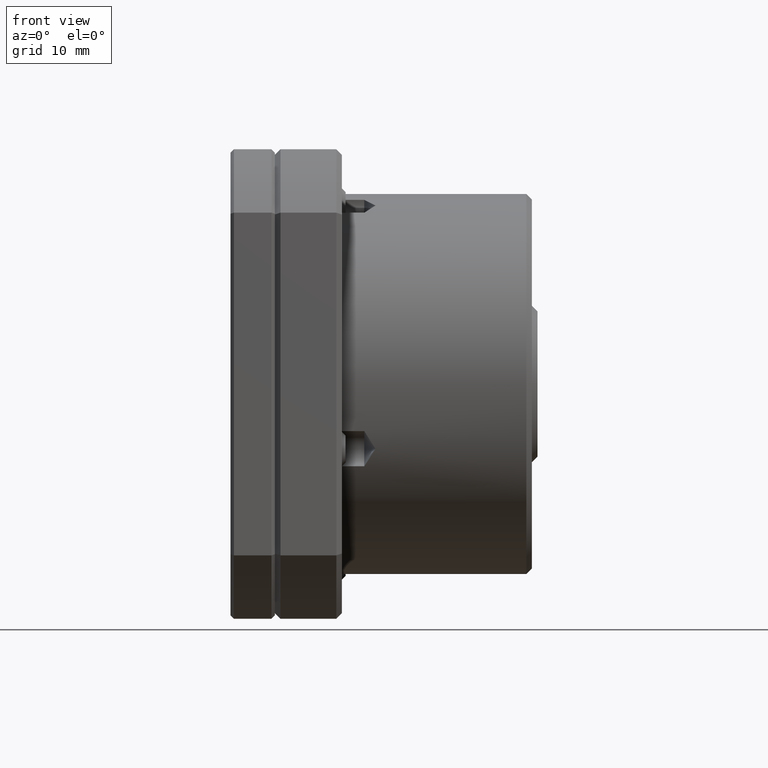
[diagram: clean part render]
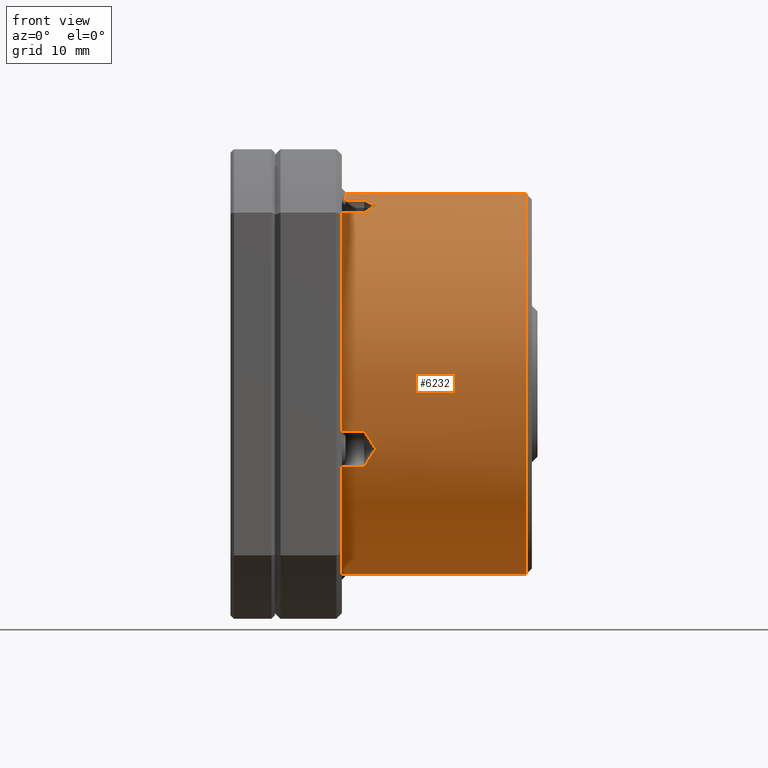
[diagram: same view with one face highlighted and labeled with its STEP entity id]
A machine part, front view. The second image highlights one B-rep face of the part: STEP entity #6232.
In plain terms, the highlighted cylindrical surface (partial cylindrical patch) has radius 17 mm, axis along (-1, -0, -0).
Its self-contained STEP definition (entity closure, byte-faithful):
#16 = VERTEX_POINT ( 'NONE', #10476 ) ;
#146 = CARTESIAN_POINT ( 'NONE',  ( 9.006441512039907900, -15.97477456760041500, -5.814342397512192000 ) ) ;
#210 = VERTEX_POINT ( 'NONE', #10859 ) ;
#270 = DIRECTION ( 'NONE',  ( 1.000000000000000000, 0.0000000000000000000, 0.0000000000000000000 ) ) ;
#461 = LINE ( 'NONE', #7096, #8431 ) ;
#630 = CARTESIAN_POINT ( 'NONE',  ( 9.006441536838032400, -5.814342436536150200, 15.97477455336052500 ) ) ;
#978 = EDGE_LOOP ( 'NONE', ( #5684, #9097, #5195, #1148, #8618, #4695, #15970, #12084, #15500, #18948, #7252, #3277, #6810, #18017 ) ) ;
#1148 = ORIENTED_EDGE ( 'NONE', *, *, #12668, .T. ) ;
#1340 = EDGE_CURVE ( 'NONE', #8462, #6488, #2645, .T. ) ;
#1916 = DIRECTION ( 'NONE',  ( -1.000000000000000000, -0.0000000000000000000, -0.0000000000000000000 ) ) ;
#2190 = VERTEX_POINT ( 'NONE', #5064 ) ;
#2475 = CIRCLE ( 'NONE', #4969, 17.00000000000000000 ) ;
#2481 = CARTESIAN_POINT ( 'NONE',  ( 6.000000000000000000, -16.46942075848915400, -4.214045547908403600 ) ) ;
#2526 = VERTEX_POINT ( 'NONE', #18019 ) ;
#2543 = DIRECTION ( 'NONE',  ( -1.000000000000000000, -0.0000000000000000000, -0.0000000000000000000 ) ) ;
#2645 = LINE ( 'NONE', #12249, #17864 ) ;
#2707 = CARTESIAN_POINT ( 'NONE',  ( 0.0000000000000000000, -7.358193427245245400, 15.32504451827938200 ) ) ;
#3179 = CARTESIAN_POINT ( 'NONE',  ( 22.50000000000001100, 0.0000000000000000000, 0.0000000000000000000 ) ) ;
#3277 = ORIENTED_EDGE ( 'NONE', *, *, #4027, .T. ) ;
#3556 = CARTESIAN_POINT ( 'NONE',  ( 7.999999999990075500, -15.32504451828193500, -7.358193427239928800 ) ) ;
#3614 = CARTESIAN_POINT ( 'NONE',  ( 8.334801564085033500, -15.56651479251302200, -6.855278854657869100 ) ) ;
#3838 = CYLINDRICAL_SURFACE ( 'NONE', #14185, 17.00000000000000000 ) ;
#3858 = EDGE_CURVE ( 'NONE', #16274, #2190, #12786, .T. ) ;
#3911 = CARTESIAN_POINT ( 'NONE',  ( 8.670684028350688500, -15.78365563561162300, -6.339437347481879900 ) ) ;
#4022 = CARTESIAN_POINT ( 'NONE',  ( 9.006441512039907900, -15.97477456760041500, -5.814342397512192000 ) ) ;
#4027 = EDGE_CURVE ( 'NONE', #7979, #2526, #11129, .T. ) ;
#4147 = EDGE_CURVE ( 'NONE', #11912, #13547, #13456, .T. ) ;
#4173 = CARTESIAN_POINT ( 'NONE',  ( 0.0000000000000000000, -16.46942075848915400, -4.214045547908405400 ) ) ;
#4308 = FACE_OUTER_BOUND ( 'NONE', #978, .T. ) ;
#4460 = DIRECTION ( 'NONE',  ( -1.000000000000000000, -0.0000000000000000000, -0.0000000000000000000 ) ) ;
#4695 = ORIENTED_EDGE ( 'NONE', *, *, #13984, .T. ) ;
#4707 = DIRECTION ( 'NONE',  ( 0.0000000000000000000, 0.0000000000000000000, 1.000000000000000000 ) ) ;
#4969 = AXIS2_PLACEMENT_3D ( 'NONE', #9236, #270, #10711 ) ;
#5029 = AXIS2_PLACEMENT_3D ( 'NONE', #3179, #13538, #4707 ) ;
#5064 = CARTESIAN_POINT ( 'NONE',  ( 6.000000000000000000, 2.081899558550500300E-015, -17.00000000000000000 ) ) ;
#5152 = CARTESIAN_POINT ( 'NONE',  ( 8.334801573466263500, -4.754514577322914300, 16.33113046033002300 ) ) ;
#5195 = ORIENTED_EDGE ( 'NONE', *, *, #9252, .T. ) ;
#5300 = EDGE_CURVE ( 'NONE', #16, #2190, #10901, .T. ) ;
#5495 = DIRECTION ( 'NONE',  ( 0.0000000000000000000, 0.0000000000000000000, 1.000000000000000000 ) ) ;
#5511 = DIRECTION ( 'NONE',  ( 1.000000000000000000, 0.0000000000000000000, 0.0000000000000000000 ) ) ;
#5526 = CARTESIAN_POINT ( 'NONE',  ( 6.000000000000000000, 0.0000000000000000000, 0.0000000000000000000 ) ) ;
#5605 = B_SPLINE_CURVE_WITH_KNOTS ( 'NONE', 3,
 ( #10070, #11522, #18815, #15936 ),
 .UNSPECIFIED., .F., .F.,
 ( 4, 4 ),
 ( -2.188882881922837900E-008, 0.001955702503234211400 ),
 .UNSPECIFIED. ) ;
#5684 = ORIENTED_EDGE ( 'NONE', *, *, #5300, .F. ) ;
#5717 = DIRECTION ( 'NONE',  ( 1.000000000000000000, 0.0000000000000000000, 0.0000000000000000000 ) ) ;
#5939 = VERTEX_POINT ( 'NONE', #2481 ) ;
#5979 = EDGE_CURVE ( 'NONE', #5939, #13218, #7423, .T. ) ;
#6133 = CARTESIAN_POINT ( 'NONE',  ( 9.006441536838032400, -5.814342436536150200, 15.97477455336052500 ) ) ;
#6232 = ADVANCED_FACE ( 'NONE', ( #4308 ), #3838, .T. ) ;
#6268 = CARTESIAN_POINT ( 'NONE',  ( 8.334801573577324900, -16.33113046033371100, -4.754514577311013600 ) ) ;
#6488 = VERTEX_POINT ( 'NONE', #15867 ) ;
#6676 = CARTESIAN_POINT ( 'NONE',  ( 6.000000000000000000, -7.358193427245247200, 15.32504451827938200 ) ) ;
#6810 = ORIENTED_EDGE ( 'NONE', *, *, #7893, .T. ) ;
#6837 = CIRCLE ( 'NONE', #8510, 17.00000000000000000 ) ;
#7096 = CARTESIAN_POINT ( 'NONE',  ( 0.0000000000000000000, -15.32504451827935600, -7.358193427245297800 ) ) ;
#7252 = ORIENTED_EDGE ( 'NONE', *, *, #15316, .T. ) ;
#7423 = LINE ( 'NONE', #4173, #14740 ) ;
#7732 = CARTESIAN_POINT ( 'NONE',  ( 8.671532677869382900, -16.16541040529286000, -5.290574738013547500 ) ) ;
#7774 = CARTESIAN_POINT ( 'NONE',  ( 7.999999999971163500, -7.358193427239108100, 15.32504451828232700 ) ) ;
#7893 = EDGE_CURVE ( 'NONE', #2526, #16274, #461, .T. ) ;
#7933 = EDGE_CURVE ( 'NONE', #9023, #11912, #5605, .T. ) ;
#7943 = VECTOR ( 'NONE', #4460, 1000.000000000000000 ) ;
#7979 = VERTEX_POINT ( 'NONE', #146 ) ;
#8105 = CARTESIAN_POINT ( 'NONE',  ( 7.999999999972413200, -4.214045547916959400, 16.46942075848696500 ) ) ;
#8431 = VECTOR ( 'NONE', #17340, 1000.000000000000000 ) ;
#8450 = CARTESIAN_POINT ( 'NONE',  ( 22.50000000000001100, 0.0000000000000000000, 17.00000000000000000 ) ) ;
#8460 = EDGE_CURVE ( 'NONE', #16, #16783, #13264, .T. ) ;
#8462 = VERTEX_POINT ( 'NONE', #14905 ) ;
#8510 = AXIS2_PLACEMENT_3D ( 'NONE', #14434, #5717, #15935 ) ;
#8618 = ORIENTED_EDGE ( 'NONE', *, *, #1340, .T. ) ;
#9023 = VERTEX_POINT ( 'NONE', #6133 ) ;
#9097 = ORIENTED_EDGE ( 'NONE', *, *, #8460, .T. ) ;
#9236 = CARTESIAN_POINT ( 'NONE',  ( 6.000000000000000000, 0.0000000000000000000, 0.0000000000000000000 ) ) ;
#9252 = EDGE_CURVE ( 'NONE', #16783, #210, #15737, .T. ) ;
#9450 = B_SPLINE_CURVE_WITH_KNOTS ( 'NONE', 3,
 ( #16519, #6268, #7732, #17975 ),
 .UNSPECIFIED., .F., .F.,
 ( 4, 4 ),
 ( 0.002424043899761294000, 0.004374825068047102400 ),
 .UNSPECIFIED. ) ;
#9567 = VECTOR ( 'NONE', #2543, 1000.000000000000000 ) ;
#9605 = CARTESIAN_POINT ( 'NONE',  ( 8.671532677702440800, -5.290574738004030700, 16.16541040529632400 ) ) ;
#9811 = DIRECTION ( 'NONE',  ( -1.000000000000000000, -0.0000000000000000000, -0.0000000000000000000 ) ) ;
#9843 = CARTESIAN_POINT ( 'NONE',  ( -3.974148006695321600, 2.081899558550500300E-015, -17.00000000000000000 ) ) ;
#10070 = CARTESIAN_POINT ( 'NONE',  ( 9.006441536838032400, -5.814342436536150200, 15.97477455336052500 ) ) ;
#10476 = CARTESIAN_POINT ( 'NONE',  ( 22.50000000000001100, 2.081899558550500300E-015, -17.00000000000000000 ) ) ;
#10711 = DIRECTION ( 'NONE',  ( 0.0000000000000000000, 0.0000000000000000000, 1.000000000000000000 ) ) ;
#10821 = CARTESIAN_POINT ( 'NONE',  ( -3.974148006695321600, 0.0000000000000000000, 0.0000000000000000000 ) ) ;
#10859 = CARTESIAN_POINT ( 'NONE',  ( 6.000000000000000000, 0.0000000000000000000, 17.00000000000000000 ) ) ;
#10901 = LINE ( 'NONE', #9843, #15707 ) ;
#11126 = CARTESIAN_POINT ( 'NONE',  ( 6.000000000000000000, -15.32504451827935600, -7.358193427245300500 ) ) ;
#11129 = B_SPLINE_CURVE_WITH_KNOTS ( 'NONE', 3,
 ( #4022, #3911, #3614, #3556 ),
 .UNSPECIFIED., .F., .F.,
 ( 4, 4 ),
 ( -2.188882882260736200E-008, 0.001955702503368600000 ),
 .UNSPECIFIED. ) ;
#11277 = AXIS2_PLACEMENT_3D ( 'NONE', #5526, #5511, #5495 ) ;
#11522 = CARTESIAN_POINT ( 'NONE',  ( 8.670684028198412100, -6.339437347503991100, 15.78365563560357600 ) ) ;
#11912 = VERTEX_POINT ( 'NONE', #7774 ) ;
#12084 = ORIENTED_EDGE ( 'NONE', *, *, #4147, .T. ) ;
#12142 = DIRECTION ( 'NONE',  ( 1.000000000000000000, 0.0000000000000000000, 0.0000000000000000000 ) ) ;
#12249 = CARTESIAN_POINT ( 'NONE',  ( 0.0000000000000000000, -4.214045547908346700, 16.46942075848916800 ) ) ;
#12307 = DIRECTION ( 'NONE',  ( 0.0000000000000000000, 0.0000000000000000000, 1.000000000000000000 ) ) ;
#12668 = EDGE_CURVE ( 'NONE', #210, #8462, #2475, .T. ) ;
#12786 = CIRCLE ( 'NONE', #11277, 17.00000000000000000 ) ;
#13218 = VERTEX_POINT ( 'NONE', #15218 ) ;
#13264 = CIRCLE ( 'NONE', #5029, 17.00000000000000000 ) ;
#13309 = CARTESIAN_POINT ( 'NONE',  ( -3.974148006695321600, 0.0000000000000000000, 17.00000000000000000 ) ) ;
#13456 = LINE ( 'NONE', #2707, #9567 ) ;
#13538 = DIRECTION ( 'NONE',  ( -1.000000000000000000, -0.0000000000000000000, -0.0000000000000000000 ) ) ;
#13547 = VERTEX_POINT ( 'NONE', #6676 ) ;
#13984 = EDGE_CURVE ( 'NONE', #6488, #9023, #16492, .T. ) ;
#14185 = AXIS2_PLACEMENT_3D ( 'NONE', #10821, #1916, #12307 ) ;
#14434 = CARTESIAN_POINT ( 'NONE',  ( 6.000000000000000000, 0.0000000000000000000, 0.0000000000000000000 ) ) ;
#14740 = VECTOR ( 'NONE', #17427, 1000.000000000000000 ) ;
#14905 = CARTESIAN_POINT ( 'NONE',  ( 6.000000000000000000, -4.214045547908345000, 16.46942075848916800 ) ) ;
#15218 = CARTESIAN_POINT ( 'NONE',  ( 7.999999999979853400, -16.46942075848881300, -4.214045547910243000 ) ) ;
#15316 = EDGE_CURVE ( 'NONE', #13218, #7979, #9450, .T. ) ;
#15500 = ORIENTED_EDGE ( 'NONE', *, *, #15871, .T. ) ;
#15707 = VECTOR ( 'NONE', #9811, 1000.000000000000000 ) ;
#15737 = LINE ( 'NONE', #13309, #7943 ) ;
#15867 = CARTESIAN_POINT ( 'NONE',  ( 7.999999999972413200, -4.214045547916959400, 16.46942075848696500 ) ) ;
#15871 = EDGE_CURVE ( 'NONE', #13547, #5939, #6837, .T. ) ;
#15935 = DIRECTION ( 'NONE',  ( 0.0000000000000000000, 0.0000000000000000000, 1.000000000000000000 ) ) ;
#15936 = CARTESIAN_POINT ( 'NONE',  ( 7.999999999971163500, -7.358193427239108100, 15.32504451828232700 ) ) ;
#15970 = ORIENTED_EDGE ( 'NONE', *, *, #7933, .T. ) ;
#16274 = VERTEX_POINT ( 'NONE', #11126 ) ;
#16492 = B_SPLINE_CURVE_WITH_KNOTS ( 'NONE', 3,
 ( #8105, #5152, #9605, #630 ),
 .UNSPECIFIED., .F., .F.,
 ( 4, 4 ),
 ( 0.002424043899909263300, 0.004374825068048575200 ),
 .UNSPECIFIED. ) ;
#16519 = CARTESIAN_POINT ( 'NONE',  ( 7.999999999979853400, -16.46942075848881300, -4.214045547910243000 ) ) ;
#16783 = VERTEX_POINT ( 'NONE', #8450 ) ;
#17340 = DIRECTION ( 'NONE',  ( -1.000000000000000000, -0.0000000000000000000, -0.0000000000000000000 ) ) ;
#17427 = DIRECTION ( 'NONE',  ( 1.000000000000000000, 0.0000000000000000000, 0.0000000000000000000 ) ) ;
#17864 = VECTOR ( 'NONE', #12142, 1000.000000000000000 ) ;
#17975 = CARTESIAN_POINT ( 'NONE',  ( 9.006441512039907900, -15.97477456760041500, -5.814342397512192000 ) ) ;
#18017 = ORIENTED_EDGE ( 'NONE', *, *, #3858, .T. ) ;
#18019 = CARTESIAN_POINT ( 'NONE',  ( 7.999999999990075500, -15.32504451828193500, -7.358193427239928800 ) ) ;
#18815 = CARTESIAN_POINT ( 'NONE',  ( 8.334801563970122700, -6.855278854652184800, 15.56651479251540400 ) ) ;
#18948 = ORIENTED_EDGE ( 'NONE', *, *, #5979, .T. ) ;